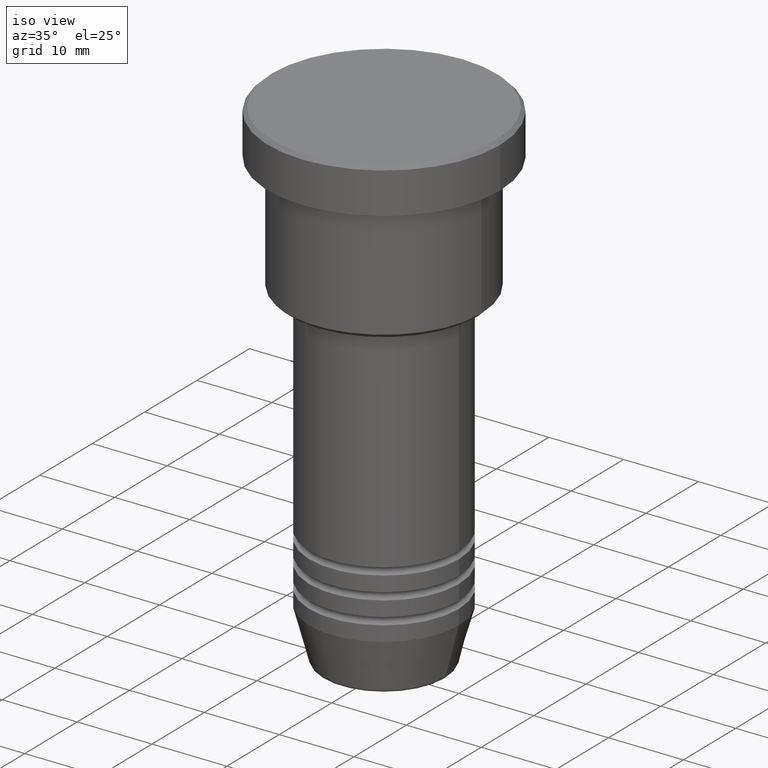
[diagram: clean part render]
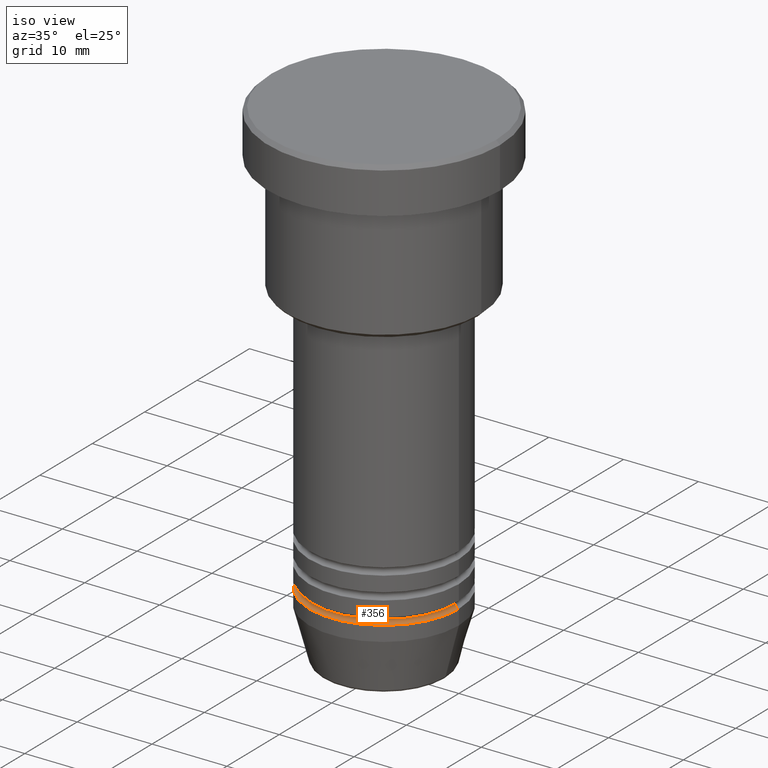
[diagram: same view with one face highlighted and labeled with its STEP entity id]
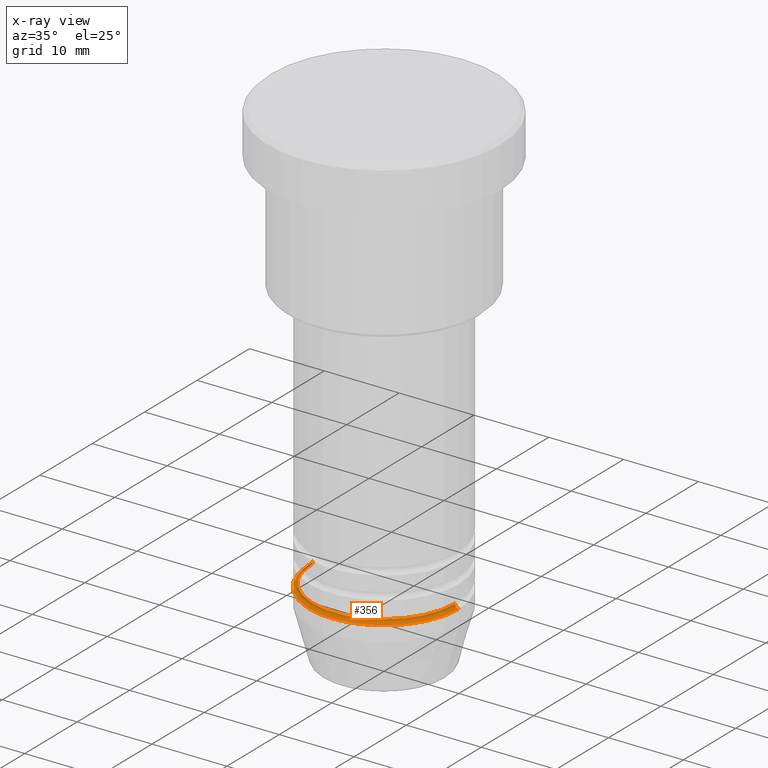
[diagram: x-ray of the same camera — body ghosted, the highlighted face saturated]
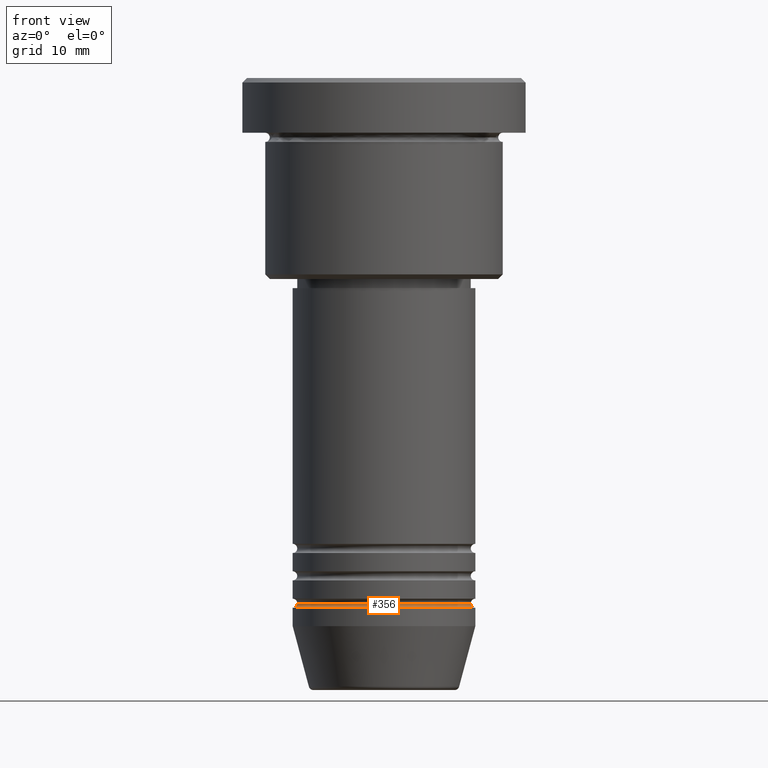
[diagram: same view with one face highlighted and labeled with its STEP entity id]
A machine part, iso view. The second image highlights one B-rep face of the part: STEP entity #356.
The next image is the same camera in x-ray: the body ghosted, the highlighted face saturated — about 1% of this face is hidden behind the body in this view.
A second angle (front view) of the same face is appended — the face is thin or edge-on in the first view.
In plain terms, the highlighted toroidal blend (fillet) surface has major radius 10 mm and minor (blend) radius 0.5 mm.
Its self-contained STEP definition (entity closure, byte-faithful):
#3 = VERTEX_POINT ( 'NONE', #172 ) ;
#9 = CARTESIAN_POINT ( 'NONE',  ( 0.000000000000000000, 0.000000000000000000, -57.49999999999998579 ) ) ;
#75 = CIRCLE ( 'NONE', #534, 9.500000000000001776 ) ;
#144 = CARTESIAN_POINT ( 'NONE',  ( 10.00000000000000178, 0.000000000000000000, -57.49999999999998579 ) ) ;
#170 = AXIS2_PLACEMENT_3D ( 'NONE', #390, #383, #632 ) ;
#171 = EDGE_CURVE ( 'NONE', #1074, #547, #1163, .T. ) ;
#172 = CARTESIAN_POINT ( 'NONE',  ( 9.500000000000001776, 0.000000000000000000, -57.49999999999998579 ) ) ;
#250 = CARTESIAN_POINT ( 'NONE',  ( 0.000000000000000000, 0.000000000000000000, -57.99999999999999289 ) ) ;
#260 = ORIENTED_EDGE ( 'NONE', *, *, #521, .F. ) ;
#356 = ADVANCED_FACE ( 'NONE', ( #1092 ), #385, .F. ) ;
#383 = DIRECTION ( 'NONE',  ( -0.000000000000000000, -0.000000000000000000, 1.000000000000000000 ) ) ;
#385 = TOROIDAL_SURFACE ( 'NONE', #170, 10.00000000000000178, 0.5000000000000000000 ) ;
#390 = CARTESIAN_POINT ( 'NONE',  ( 0.000000000000000000, 0.000000000000000000, -57.49999999999998579 ) ) ;
#393 = DIRECTION ( 'NONE',  ( -1.000000000000000000, 1.224646799147353454E-16, 0.000000000000000000 ) ) ;
#481 = EDGE_LOOP ( 'NONE', ( #260, #740, #858, #761 ) ) ;
#482 = EDGE_CURVE ( 'NONE', #3, #547, #586, .T. ) ;
#521 = EDGE_CURVE ( 'NONE', #523, #3, #75, .T. ) ;
#523 = VERTEX_POINT ( 'NONE', #995 ) ;
#531 = AXIS2_PLACEMENT_3D ( 'NONE', #250, #983, #698 ) ;
#534 = AXIS2_PLACEMENT_3D ( 'NONE', #9, #917, #809 ) ;
#545 = AXIS2_PLACEMENT_3D ( 'NONE', #653, #568, #393 ) ;
#547 = VERTEX_POINT ( 'NONE', #627 ) ;
#568 = DIRECTION ( 'NONE',  ( 1.224646799147353207E-16, 1.000000000000000000, 0.000000000000000000 ) ) ;
#586 = CIRCLE ( 'NONE', #834, 0.5000000000000004441 ) ;
#601 = CARTESIAN_POINT ( 'NONE',  ( -10.00000000000000000, 1.224646799147353256E-15, -57.99999999999999289 ) ) ;
#623 = DIRECTION ( 'NONE',  ( 0.000000000000000000, 0.000000000000000000, -1.000000000000000000 ) ) ;
#627 = CARTESIAN_POINT ( 'NONE',  ( 10.00000000000000000, 0.000000000000000000, -57.99999999999999289 ) ) ;
#632 = DIRECTION ( 'NONE',  ( 1.000000000000000000, 0.000000000000000000, 0.000000000000000000 ) ) ;
#653 = CARTESIAN_POINT ( 'NONE',  ( -10.00000000000000178, 1.224646799147353454E-15, -57.49999999999998579 ) ) ;
#694 = EDGE_CURVE ( 'NONE', #523, #1074, #948, .T. ) ;
#698 = DIRECTION ( 'NONE',  ( 1.000000000000000000, 0.000000000000000000, 0.000000000000000000 ) ) ;
#713 = DIRECTION ( 'NONE',  ( 0.000000000000000000, -1.000000000000000000, 0.000000000000000000 ) ) ;
#740 = ORIENTED_EDGE ( 'NONE', *, *, #694, .T. ) ;
#761 = ORIENTED_EDGE ( 'NONE', *, *, #482, .F. ) ;
#809 = DIRECTION ( 'NONE',  ( 1.000000000000000000, 0.000000000000000000, 0.000000000000000000 ) ) ;
#834 = AXIS2_PLACEMENT_3D ( 'NONE', #144, #713, #623 ) ;
#858 = ORIENTED_EDGE ( 'NONE', *, *, #171, .T. ) ;
#917 = DIRECTION ( 'NONE',  ( -0.000000000000000000, -0.000000000000000000, 1.000000000000000000 ) ) ;
#948 = CIRCLE ( 'NONE', #545, 0.5000000000000004441 ) ;
#983 = DIRECTION ( 'NONE',  ( -0.000000000000000000, -0.000000000000000000, 1.000000000000000000 ) ) ;
#995 = CARTESIAN_POINT ( 'NONE',  ( -9.500000000000001776, 1.194030629168669469E-15, -57.49999999999998579 ) ) ;
#1074 = VERTEX_POINT ( 'NONE', #601 ) ;
#1092 = FACE_OUTER_BOUND ( 'NONE', #481, .T. ) ;
#1163 = CIRCLE ( 'NONE', #531, 10.00000000000000000 ) ;